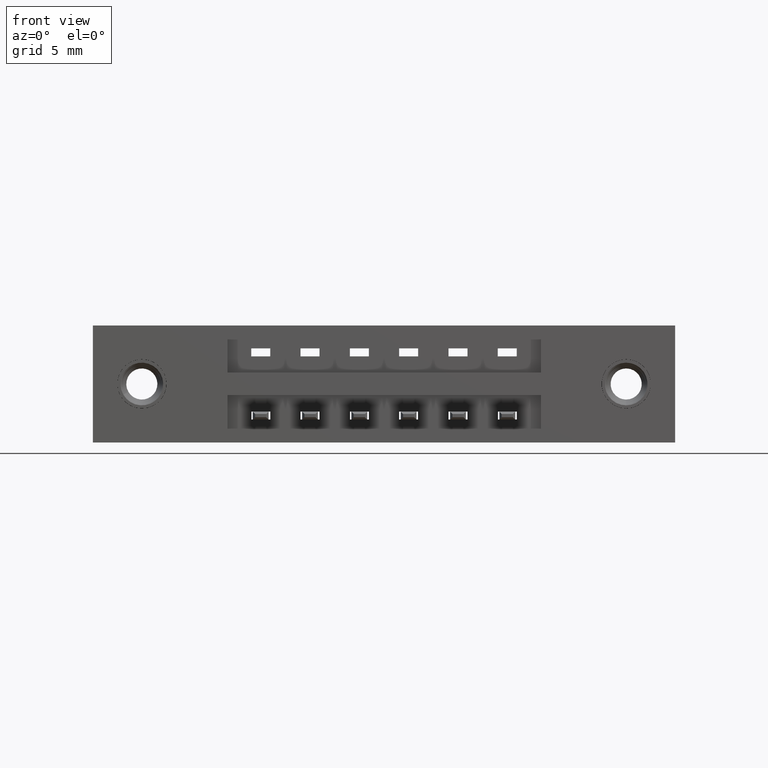
[diagram: clean part render]
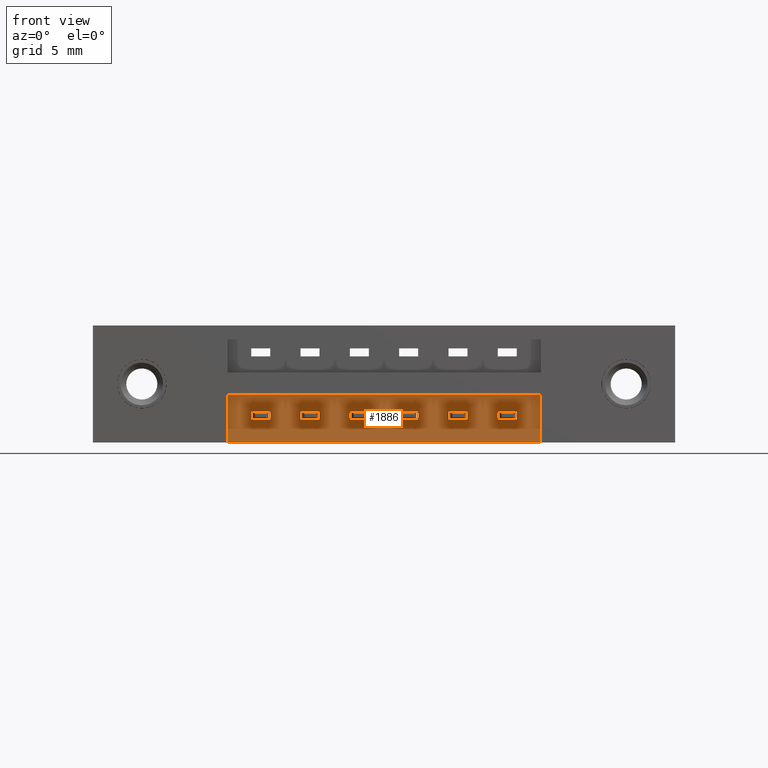
[diagram: same view with one face highlighted and labeled with its STEP entity id]
A machine part, front view. The second image highlights one B-rep face of the part: STEP entity #1886.
In plain terms, the highlighted planar face has unit normal (0, -1, 0).
Its self-contained STEP definition (entity closure, byte-faithful):
#9 = VERTEX_POINT ( 'NONE', #9840 ) ;
#17 = CARTESIAN_POINT ( 'NONE',  ( 0.4249999999999999900, 0.05000000000000000300, -0.2200000000000000000 ) ) ;
#29 = CARTESIAN_POINT ( 'NONE',  ( 1.417000000000000700, 0.05000000000000000300, -0.2725000000000000800 ) ) ;
#65 = EDGE_CURVE ( 'NONE', #3603, #1490, #9682, .T. ) ;
#104 = ORIENTED_EDGE ( 'NONE', *, *, #7374, .T. ) ;
#127 = EDGE_CURVE ( 'NONE', #653, #5772, #1525, .T. ) ;
#192 = CARTESIAN_POINT ( 'NONE',  ( 1.417000000000000700, 0.05000000000000000300, -0.2725000000000000200 ) ) ;
#234 = LINE ( 'NONE', #5318, #2351 ) ;
#236 = ORIENTED_EDGE ( 'NONE', *, *, #2678, .F. ) ;
#245 = DIRECTION ( 'NONE',  ( 0.0000000000000000000, 0.0000000000000000000, 1.000000000000000000 ) ) ;
#253 = DIRECTION ( 'NONE',  ( 0.0000000000000000000, 0.0000000000000000000, 1.000000000000000000 ) ) ;
#331 = LINE ( 'NONE', #8705, #6203 ) ;
#332 = CARTESIAN_POINT ( 'NONE',  ( 1.280999999999999700, 0.05000000000000001000, -0.2725000000000000200 ) ) ;
#387 = LINE ( 'NONE', #3502, #2619 ) ;
#410 = CARTESIAN_POINT ( 'NONE',  ( 0.8129999999999999400, 0.05000000000000000300, -0.3700000000000000000 ) ) ;
#423 = VECTOR ( 'NONE', #5864, 39.37007874015748100 ) ;
#468 = CARTESIAN_POINT ( 'NONE',  ( 1.417000000000000700, 0.05000000000000000300, -0.2725000000000000200 ) ) ;
#502 = LINE ( 'NONE', #3824, #2359 ) ;
#610 = CARTESIAN_POINT ( 'NONE',  ( 0.8730000000000000000, 0.05000000000000000300, -0.2975000000000001000 ) ) ;
#653 = VERTEX_POINT ( 'NONE', #6551 ) ;
#705 = EDGE_CURVE ( 'NONE', #7149, #1304, #1516, .T. ) ;
#718 = EDGE_CURVE ( 'NONE', #7916, #1490, #2889, .T. ) ;
#733 = CARTESIAN_POINT ( 'NONE',  ( 1.184999999999999800, 0.05000000000000000300, -0.2975000000000001000 ) ) ;
#784 = CARTESIAN_POINT ( 'NONE',  ( 0.8129999999999999400, 0.05000000000000001000, -0.2725000000000000800 ) ) ;
#790 = DIRECTION ( 'NONE',  ( -1.000000000000000000, 0.0000000000000000000, 0.0000000000000000000 ) ) ;
#804 = ORIENTED_EDGE ( 'NONE', *, *, #65, .T. ) ;
#863 = LINE ( 'NONE', #7420, #2739 ) ;
#981 = VERTEX_POINT ( 'NONE', #1595 ) ;
#1041 = LINE ( 'NONE', #1747, #8592 ) ;
#1113 = ORIENTED_EDGE ( 'NONE', *, *, #705, .F. ) ;
#1124 = FACE_BOUND ( 'NONE', #8893, .T. ) ;
#1180 = ORIENTED_EDGE ( 'NONE', *, *, #127, .F. ) ;
#1258 = EDGE_LOOP ( 'NONE', ( #8629, #8679, #8412, #4990 ) ) ;
#1304 = VERTEX_POINT ( 'NONE', #6836 ) ;
#1490 = VERTEX_POINT ( 'NONE', #784 ) ;
#1508 = VERTEX_POINT ( 'NONE', #8577 ) ;
#1516 = LINE ( 'NONE', #468, #2752 ) ;
#1525 = LINE ( 'NONE', #8395, #7497 ) ;
#1578 = LINE ( 'NONE', #7941, #5481 ) ;
#1586 = VECTOR ( 'NONE', #3368, 39.37007874015748100 ) ;
#1595 = CARTESIAN_POINT ( 'NONE',  ( 1.340999999999999700, 0.05000000000000001000, -0.2725000000000000200 ) ) ;
#1622 = CARTESIAN_POINT ( 'NONE',  ( 0.9689999999999998600, 0.05000000000000014800, -0.2975000000000001000 ) ) ;
#1652 = EDGE_CURVE ( 'NONE', #1508, #4732, #3973, .T. ) ;
#1681 = CARTESIAN_POINT ( 'NONE',  ( 1.124999999999999800, 0.05000000000000014800, -0.2975000000000001000 ) ) ;
#1735 = VERTEX_POINT ( 'NONE', #5937 ) ;
#1746 = DIRECTION ( 'NONE',  ( 1.000000000000000000, 0.0000000000000000000, 0.0000000000000000000 ) ) ;
#1747 = CARTESIAN_POINT ( 'NONE',  ( 1.417000000000000700, 0.05000000000000000300, -0.2975000000000000400 ) ) ;
#1776 = VERTEX_POINT ( 'NONE', #5830 ) ;
#1792 = CARTESIAN_POINT ( 'NONE',  ( 1.417000000000000700, 0.05000000000000000300, -0.3700000000000000000 ) ) ;
#1848 = DIRECTION ( 'NONE',  ( 1.000000000000000000, 0.0000000000000000000, 0.0000000000000000000 ) ) ;
#1865 = CARTESIAN_POINT ( 'NONE',  ( 1.124999999999999800, 0.05000000000000000300, -0.3700000000000000000 ) ) ;
#1886 = ADVANCED_FACE ( 'NONE', ( #3335, #6385, #9276, #4546, #7349, #5638, #1124 ), #8117, .T. ) ;
#2044 = EDGE_CURVE ( 'NONE', #2995, #4732, #387, .T. ) ;
#2072 = DIRECTION ( 'NONE',  ( 0.0000000000000000000, 0.0000000000000000000, 1.000000000000000000 ) ) ;
#2312 = CARTESIAN_POINT ( 'NONE',  ( 0.6570000000000000300, 0.05000000000000000300, -0.3700000000000000000 ) ) ;
#2351 = VECTOR ( 'NONE', #6973, 39.37007874015748100 ) ;
#2359 = VECTOR ( 'NONE', #6130, 39.37007874015748100 ) ;
#2380 = VECTOR ( 'NONE', #8993, 39.37007874015748100 ) ;
#2390 = DIRECTION ( 'NONE',  ( 0.0000000000000000000, -0.0000000000000000000, -1.000000000000000000 ) ) ;
#2476 = DIRECTION ( 'NONE',  ( 0.0000000000000000000, 0.0000000000000000000, 1.000000000000000000 ) ) ;
#2490 = EDGE_CURVE ( 'NONE', #6007, #981, #7455, .T. ) ;
#2590 = ORIENTED_EDGE ( 'NONE', *, *, #3608, .F. ) ;
#2619 = VECTOR ( 'NONE', #2072, 39.37007874015748100 ) ;
#2631 = CARTESIAN_POINT ( 'NONE',  ( 0.4249999999999999900, 0.05000000000000000300, -0.2200000000000000000 ) ) ;
#2649 = EDGE_CURVE ( 'NONE', #9961, #4328, #3329, .T. ) ;
#2678 = EDGE_CURVE ( 'NONE', #4328, #7149, #3949, .T. ) ;
#2727 = ORIENTED_EDGE ( 'NONE', *, *, #10017, .F. ) ;
#2739 = VECTOR ( 'NONE', #8226, 39.37007874015748100 ) ;
#2752 = VECTOR ( 'NONE', #2949, 39.37007874015748100 ) ;
#2772 = ORIENTED_EDGE ( 'NONE', *, *, #2915, .F. ) ;
#2843 = EDGE_CURVE ( 'NONE', #6540, #9, #502, .T. ) ;
#2868 = CARTESIAN_POINT ( 'NONE',  ( 0.7170000000000000800, 0.05000000000000001000, -0.2725000000000000800 ) ) ;
#2889 = LINE ( 'NONE', #9797, #5050 ) ;
#2915 = EDGE_CURVE ( 'NONE', #4242, #9814, #234, .T. ) ;
#2928 = VECTOR ( 'NONE', #1746, 39.37007874015748100 ) ;
#2949 = DIRECTION ( 'NONE',  ( -1.000000000000000000, 0.0000000000000000000, 0.0000000000000000000 ) ) ;
#2952 = VERTEX_POINT ( 'NONE', #6330 ) ;
#2995 = VERTEX_POINT ( 'NONE', #1622 ) ;
#3193 = ORIENTED_EDGE ( 'NONE', *, *, #5455, .F. ) ;
#3329 = LINE ( 'NONE', #7308, #3701 ) ;
#3335 = FACE_OUTER_BOUND ( 'NONE', #1258, .T. ) ;
#3368 = DIRECTION ( 'NONE',  ( 0.0000000000000000000, 0.0000000000000000000, 1.000000000000000000 ) ) ;
#3401 = LINE ( 'NONE', #9451, #2928 ) ;
#3486 = VECTOR ( 'NONE', #8191, 39.37007874015748100 ) ;
#3502 = CARTESIAN_POINT ( 'NONE',  ( 0.9689999999999998600, 0.05000000000000000300, -0.3700000000000000000 ) ) ;
#3531 = CARTESIAN_POINT ( 'NONE',  ( 0.9689999999999998600, 0.05000000000000001000, -0.2725000000000000800 ) ) ;
#3573 = DIRECTION ( 'NONE',  ( 0.0000000000000000000, 0.0000000000000000000, 1.000000000000000000 ) ) ;
#3599 = CARTESIAN_POINT ( 'NONE',  ( 1.417000000000000700, 0.05000000000000000300, -0.2725000000000000200 ) ) ;
#3603 = VERTEX_POINT ( 'NONE', #9442 ) ;
#3608 = EDGE_CURVE ( 'NONE', #1776, #1735, #7670, .T. ) ;
#3654 = CARTESIAN_POINT ( 'NONE',  ( 1.028999999999999900, 0.05000000000000000300, -0.2975000000000001000 ) ) ;
#3680 = VECTOR ( 'NONE', #8787, 39.37007874015748100 ) ;
#3701 = VECTOR ( 'NONE', #1848, 39.37007874015748100 ) ;
#3788 = EDGE_CURVE ( 'NONE', #2952, #1776, #5491, .T. ) ;
#3798 = EDGE_CURVE ( 'NONE', #4728, #1735, #5606, .T. ) ;
#3824 = CARTESIAN_POINT ( 'NONE',  ( 0.4249999999999999900, 0.05000000000000000300, -0.3700000000000000000 ) ) ;
#3949 = LINE ( 'NONE', #4939, #6492 ) ;
#3973 = LINE ( 'NONE', #192, #8805 ) ;
#4028 = DIRECTION ( 'NONE',  ( -1.000000000000000000, 0.0000000000000000000, 0.0000000000000000000 ) ) ;
#4035 = EDGE_CURVE ( 'NONE', #2995, #8449, #1578, .T. ) ;
#4058 = VERTEX_POINT ( 'NONE', #7260 ) ;
#4083 = LINE ( 'NONE', #5130, #2380 ) ;
#4104 = EDGE_CURVE ( 'NONE', #9961, #1304, #9365, .T. ) ;
#4151 = ORIENTED_EDGE ( 'NONE', *, *, #5210, .T. ) ;
#4242 = VERTEX_POINT ( 'NONE', #2868 ) ;
#4308 = CARTESIAN_POINT ( 'NONE',  ( 0.8730000000000000000, 0.05000000000000001000, -0.2725000000000000800 ) ) ;
#4328 = VERTEX_POINT ( 'NONE', #733 ) ;
#4343 = ORIENTED_EDGE ( 'NONE', *, *, #4035, .F. ) ;
#4360 = CARTESIAN_POINT ( 'NONE',  ( 0.7170000000000000800, 0.05000000000000000300, -0.2975000000000001000 ) ) ;
#4370 = VECTOR ( 'NONE', #253, 39.37007874015748100 ) ;
#4377 = EDGE_LOOP ( 'NONE', ( #6908, #7814, #2590, #6564 ) ) ;
#4457 = LINE ( 'NONE', #3599, #3486 ) ;
#4546 = FACE_BOUND ( 'NONE', #8438, .T. ) ;
#4573 = EDGE_CURVE ( 'NONE', #9137, #7916, #7171, .T. ) ;
#4612 = ORIENTED_EDGE ( 'NONE', *, *, #1652, .F. ) ;
#4633 = EDGE_CURVE ( 'NONE', #9, #8100, #331, .T. ) ;
#4728 = VERTEX_POINT ( 'NONE', #7449 ) ;
#4732 = VERTEX_POINT ( 'NONE', #3531 ) ;
#4791 = VECTOR ( 'NONE', #3573, 39.37007874015748100 ) ;
#4939 = CARTESIAN_POINT ( 'NONE',  ( 1.184999999999999800, 0.05000000000000000300, -0.3700000000000000000 ) ) ;
#4990 = ORIENTED_EDGE ( 'NONE', *, *, #2843, .T. ) ;
#5019 = DIRECTION ( 'NONE',  ( 0.0000000000000000000, 0.0000000000000000000, 1.000000000000000000 ) ) ;
#5046 = CARTESIAN_POINT ( 'NONE',  ( 1.340999999999999700, 0.05000000000000000300, -0.2975000000000000400 ) ) ;
#5050 = VECTOR ( 'NONE', #7585, 39.37007874015748100 ) ;
#5130 = CARTESIAN_POINT ( 'NONE',  ( 1.028999999999999900, 0.05000000000000000300, -0.3700000000000000000 ) ) ;
#5210 = EDGE_CURVE ( 'NONE', #5955, #6719, #6798, .T. ) ;
#5304 = ORIENTED_EDGE ( 'NONE', *, *, #718, .F. ) ;
#5318 = CARTESIAN_POINT ( 'NONE',  ( 1.417000000000000700, 0.05000000000000000300, -0.2725000000000000800 ) ) ;
#5336 = DIRECTION ( 'NONE',  ( 1.000000000000000000, 0.0000000000000000000, 0.0000000000000000000 ) ) ;
#5453 = VECTOR ( 'NONE', #9081, 39.37007874015748100 ) ;
#5455 = EDGE_CURVE ( 'NONE', #5955, #6007, #1041, .T. ) ;
#5469 = VECTOR ( 'NONE', #2476, 39.37007874015748100 ) ;
#5481 = VECTOR ( 'NONE', #5665, 39.37007874015748100 ) ;
#5491 = LINE ( 'NONE', #7174, #1586 ) ;
#5590 = CARTESIAN_POINT ( 'NONE',  ( 0.8730000000000000000, 0.05000000000000000300, -0.3700000000000000000 ) ) ;
#5606 = LINE ( 'NONE', #6468, #3680 ) ;
#5638 = FACE_BOUND ( 'NONE', #9154, .T. ) ;
#5665 = DIRECTION ( 'NONE',  ( 1.000000000000000000, 0.0000000000000000000, 0.0000000000000000000 ) ) ;
#5686 = DIRECTION ( 'NONE',  ( 1.000000000000000000, 0.0000000000000000000, 0.0000000000000000000 ) ) ;
#5769 = DIRECTION ( 'NONE',  ( -1.000000000000000000, -0.0000000000000000000, -0.0000000000000000000 ) ) ;
#5772 = VERTEX_POINT ( 'NONE', #4360 ) ;
#5830 = CARTESIAN_POINT ( 'NONE',  ( 0.5610000000000000500, 0.05000000000000001000, -0.2725000000000000800 ) ) ;
#5864 = DIRECTION ( 'NONE',  ( 0.0000000000000000000, 0.0000000000000000000, 1.000000000000000000 ) ) ;
#5937 = CARTESIAN_POINT ( 'NONE',  ( 0.5010000000000001100, 0.05000000000000001000, -0.2725000000000000800 ) ) ;
#5947 = LINE ( 'NONE', #6378, #5469 ) ;
#5955 = VERTEX_POINT ( 'NONE', #6028 ) ;
#5984 = EDGE_CURVE ( 'NONE', #981, #6719, #4457, .T. ) ;
#6007 = VERTEX_POINT ( 'NONE', #5046 ) ;
#6023 = ORIENTED_EDGE ( 'NONE', *, *, #2044, .T. ) ;
#6028 = CARTESIAN_POINT ( 'NONE',  ( 1.280999999999999700, 0.05000000000000014800, -0.2975000000000000400 ) ) ;
#6094 = ORIENTED_EDGE ( 'NONE', *, *, #2490, .F. ) ;
#6130 = DIRECTION ( 'NONE',  ( -0.0000000000000000000, -0.0000000000000000000, -1.000000000000000000 ) ) ;
#6203 = VECTOR ( 'NONE', #5686, 39.37007874015748100 ) ;
#6218 = VECTOR ( 'NONE', #5769, 39.37007874015748100 ) ;
#6330 = CARTESIAN_POINT ( 'NONE',  ( 0.5610000000000000500, 0.05000000000000000300, -0.2975000000000001000 ) ) ;
#6378 = CARTESIAN_POINT ( 'NONE',  ( 1.417000000000000700, 0.05000000000000000300, -0.3700000000000000000 ) ) ;
#6380 = DIRECTION ( 'NONE',  ( 1.000000000000000000, 0.0000000000000000000, 0.0000000000000000000 ) ) ;
#6384 = LINE ( 'NONE', #2312, #8067 ) ;
#6385 = FACE_BOUND ( 'NONE', #4377, .T. ) ;
#6468 = CARTESIAN_POINT ( 'NONE',  ( 0.5010000000000001100, 0.05000000000000000300, -0.3700000000000000000 ) ) ;
#6492 = VECTOR ( 'NONE', #245, 39.37007874015748100 ) ;
#6540 = VERTEX_POINT ( 'NONE', #17 ) ;
#6551 = CARTESIAN_POINT ( 'NONE',  ( 0.6570000000000000300, 0.05000000000000014800, -0.2975000000000001000 ) ) ;
#6560 = CARTESIAN_POINT ( 'NONE',  ( 1.184999999999999800, 0.05000000000000001000, -0.2725000000000000800 ) ) ;
#6564 = ORIENTED_EDGE ( 'NONE', *, *, #3788, .F. ) ;
#6680 = EDGE_CURVE ( 'NONE', #5772, #4242, #6874, .T. ) ;
#6702 = LINE ( 'NONE', #2631, #6218 ) ;
#6719 = VERTEX_POINT ( 'NONE', #332 ) ;
#6798 = LINE ( 'NONE', #9188, #5453 ) ;
#6836 = CARTESIAN_POINT ( 'NONE',  ( 1.124999999999999800, 0.05000000000000001000, -0.2725000000000000800 ) ) ;
#6874 = LINE ( 'NONE', #9463, #4791 ) ;
#6908 = ORIENTED_EDGE ( 'NONE', *, *, #6934, .F. ) ;
#6934 = EDGE_CURVE ( 'NONE', #4728, #2952, #863, .T. ) ;
#6973 = DIRECTION ( 'NONE',  ( -1.000000000000000000, 0.0000000000000000000, 0.0000000000000000000 ) ) ;
#6989 = ORIENTED_EDGE ( 'NONE', *, *, #4573, .F. ) ;
#7149 = VERTEX_POINT ( 'NONE', #6560 ) ;
#7171 = LINE ( 'NONE', #5590, #4370 ) ;
#7174 = CARTESIAN_POINT ( 'NONE',  ( 0.5610000000000000500, 0.05000000000000000300, -0.3700000000000000000 ) ) ;
#7183 = DIRECTION ( 'NONE',  ( 0.0000000000000000000, 0.0000000000000000000, 1.000000000000000000 ) ) ;
#7226 = ORIENTED_EDGE ( 'NONE', *, *, #5984, .F. ) ;
#7260 = CARTESIAN_POINT ( 'NONE',  ( 1.417000000000000700, 0.05000000000000000300, -0.2200000000000000000 ) ) ;
#7308 = CARTESIAN_POINT ( 'NONE',  ( 1.417000000000000700, 0.05000000000000000300, -0.2975000000000001000 ) ) ;
#7349 = FACE_BOUND ( 'NONE', #8676, .T. ) ;
#7374 = EDGE_CURVE ( 'NONE', #653, #9814, #6384, .T. ) ;
#7378 = CARTESIAN_POINT ( 'NONE',  ( 0.6570000000000000300, 0.05000000000000001000, -0.2725000000000000800 ) ) ;
#7420 = CARTESIAN_POINT ( 'NONE',  ( 1.417000000000000700, 0.05000000000000000300, -0.2975000000000001000 ) ) ;
#7449 = CARTESIAN_POINT ( 'NONE',  ( 0.5010000000000001100, 0.05000000000000014800, -0.2975000000000001000 ) ) ;
#7455 = LINE ( 'NONE', #7889, #9887 ) ;
#7497 = VECTOR ( 'NONE', #5336, 39.37007874015748100 ) ;
#7585 = DIRECTION ( 'NONE',  ( -1.000000000000000000, 0.0000000000000000000, 0.0000000000000000000 ) ) ;
#7614 = DIRECTION ( 'NONE',  ( 0.0000000000000000000, -1.000000000000000000, 0.0000000000000000000 ) ) ;
#7640 = EDGE_CURVE ( 'NONE', #8449, #1508, #4083, .T. ) ;
#7670 = LINE ( 'NONE', #29, #9375 ) ;
#7766 = ORIENTED_EDGE ( 'NONE', *, *, #2649, .F. ) ;
#7814 = ORIENTED_EDGE ( 'NONE', *, *, #3798, .T. ) ;
#7889 = CARTESIAN_POINT ( 'NONE',  ( 1.340999999999999700, 0.05000000000000000300, -0.3700000000000000000 ) ) ;
#7916 = VERTEX_POINT ( 'NONE', #4308 ) ;
#7941 = CARTESIAN_POINT ( 'NONE',  ( 1.417000000000000700, 0.05000000000000000300, -0.2975000000000001000 ) ) ;
#8067 = VECTOR ( 'NONE', #9947, 39.37007874015748100 ) ;
#8100 = VERTEX_POINT ( 'NONE', #1792 ) ;
#8117 = PLANE ( 'NONE',  #9027 ) ;
#8191 = DIRECTION ( 'NONE',  ( -1.000000000000000000, 0.0000000000000000000, 0.0000000000000000000 ) ) ;
#8226 = DIRECTION ( 'NONE',  ( 1.000000000000000000, 0.0000000000000000000, 0.0000000000000000000 ) ) ;
#8395 = CARTESIAN_POINT ( 'NONE',  ( 1.417000000000000700, 0.05000000000000000300, -0.2975000000000001000 ) ) ;
#8412 = ORIENTED_EDGE ( 'NONE', *, *, #9429, .T. ) ;
#8438 = EDGE_LOOP ( 'NONE', ( #2727, #804, #5304, #6989 ) ) ;
#8449 = VERTEX_POINT ( 'NONE', #3654 ) ;
#8501 = VECTOR ( 'NONE', #5019, 39.37007874015748100 ) ;
#8577 = CARTESIAN_POINT ( 'NONE',  ( 1.028999999999999900, 0.05000000000000001000, -0.2725000000000000800 ) ) ;
#8592 = VECTOR ( 'NONE', #6380, 39.37007874015748100 ) ;
#8599 = ORIENTED_EDGE ( 'NONE', *, *, #4104, .T. ) ;
#8629 = ORIENTED_EDGE ( 'NONE', *, *, #4633, .T. ) ;
#8665 = ORIENTED_EDGE ( 'NONE', *, *, #6680, .F. ) ;
#8676 = EDGE_LOOP ( 'NONE', ( #4343, #6023, #4612, #8921 ) ) ;
#8679 = ORIENTED_EDGE ( 'NONE', *, *, #9990, .T. ) ;
#8705 = CARTESIAN_POINT ( 'NONE',  ( 0.4249999999999999900, 0.05000000000000000300, -0.3700000000000000000 ) ) ;
#8758 = CARTESIAN_POINT ( 'NONE',  ( 1.417000000000000700, 0.05000000000000000300, -0.3700000000000000000 ) ) ;
#8787 = DIRECTION ( 'NONE',  ( 0.0000000000000000000, 0.0000000000000000000, 1.000000000000000000 ) ) ;
#8805 = VECTOR ( 'NONE', #4028, 39.37007874015748100 ) ;
#8893 = EDGE_LOOP ( 'NONE', ( #3193, #4151, #7226, #6094 ) ) ;
#8921 = ORIENTED_EDGE ( 'NONE', *, *, #7640, .F. ) ;
#8993 = DIRECTION ( 'NONE',  ( 0.0000000000000000000, 0.0000000000000000000, 1.000000000000000000 ) ) ;
#9027 = AXIS2_PLACEMENT_3D ( 'NONE', #8758, #7614, #2390 ) ;
#9052 = EDGE_LOOP ( 'NONE', ( #1180, #104, #2772, #8665 ) ) ;
#9081 = DIRECTION ( 'NONE',  ( 0.0000000000000000000, 0.0000000000000000000, 1.000000000000000000 ) ) ;
#9137 = VERTEX_POINT ( 'NONE', #610 ) ;
#9154 = EDGE_LOOP ( 'NONE', ( #7766, #8599, #1113, #236 ) ) ;
#9188 = CARTESIAN_POINT ( 'NONE',  ( 1.280999999999999700, 0.05000000000000000300, -0.3700000000000000000 ) ) ;
#9276 = FACE_BOUND ( 'NONE', #9052, .T. ) ;
#9365 = LINE ( 'NONE', #1865, #8501 ) ;
#9375 = VECTOR ( 'NONE', #790, 39.37007874015748100 ) ;
#9429 = EDGE_CURVE ( 'NONE', #4058, #6540, #6702, .T. ) ;
#9442 = CARTESIAN_POINT ( 'NONE',  ( 0.8129999999999999400, 0.05000000000000014800, -0.2975000000000001000 ) ) ;
#9451 = CARTESIAN_POINT ( 'NONE',  ( 1.417000000000000700, 0.05000000000000000300, -0.2975000000000001000 ) ) ;
#9463 = CARTESIAN_POINT ( 'NONE',  ( 0.7170000000000000800, 0.05000000000000000300, -0.3700000000000000000 ) ) ;
#9682 = LINE ( 'NONE', #410, #423 ) ;
#9797 = CARTESIAN_POINT ( 'NONE',  ( 1.417000000000000700, 0.05000000000000000300, -0.2725000000000000200 ) ) ;
#9814 = VERTEX_POINT ( 'NONE', #7378 ) ;
#9840 = CARTESIAN_POINT ( 'NONE',  ( 0.4249999999999999900, 0.05000000000000000300, -0.3700000000000000000 ) ) ;
#9887 = VECTOR ( 'NONE', #7183, 39.37007874015748100 ) ;
#9947 = DIRECTION ( 'NONE',  ( 0.0000000000000000000, 0.0000000000000000000, 1.000000000000000000 ) ) ;
#9961 = VERTEX_POINT ( 'NONE', #1681 ) ;
#9990 = EDGE_CURVE ( 'NONE', #8100, #4058, #5947, .T. ) ;
#10017 = EDGE_CURVE ( 'NONE', #3603, #9137, #3401, .T. ) ;